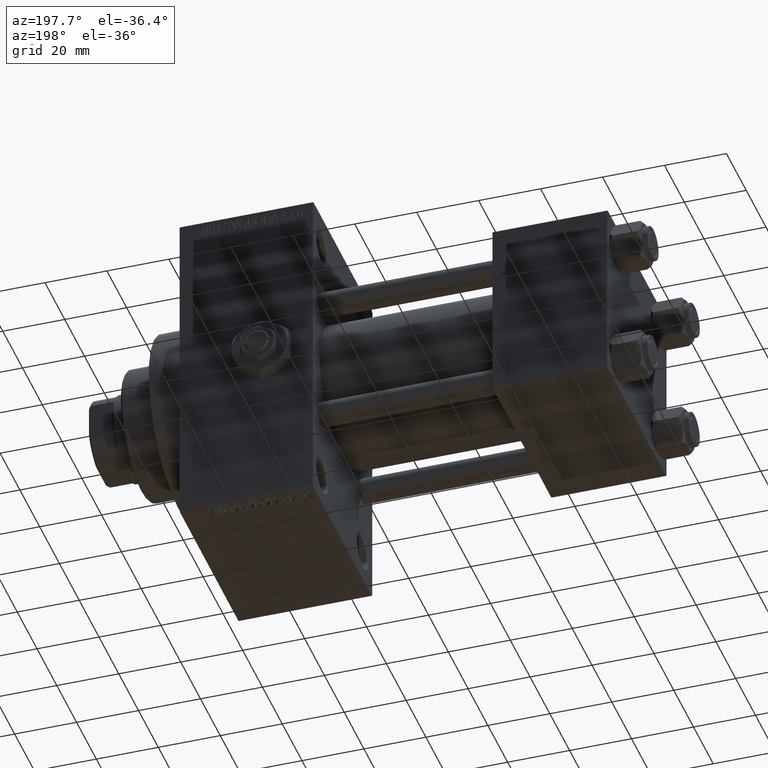
[diagram: clean part render]
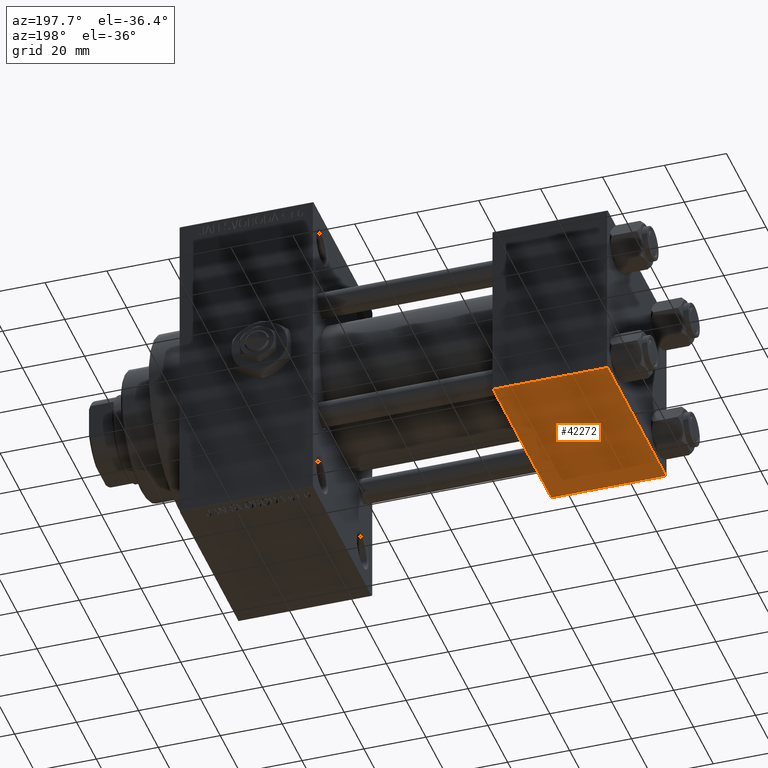
[diagram: same view with one face highlighted and labeled with its STEP entity id]
A machine part, auxiliary view. The second image highlights one B-rep face of the part: STEP entity #42272.
In plain terms, the highlighted planar face has unit normal (0, 0, -1).
Its self-contained STEP definition (entity closure, byte-faithful):
#110 = AXIS2_PLACEMENT_3D ( 'NONE', #21045, #35890, #31685 ) ;
#2740 = CARTESIAN_POINT ( 'NONE',  ( 0.000000000000000000, 29.49999999999997868, -30.00000000000000000 ) ) ;
#4115 = EDGE_CURVE ( 'NONE', #46734, #38453, #42593, .T. ) ;
#4704 = VECTOR ( 'NONE', #22862, 1000.000000000000000 ) ;
#5450 = PLANE ( 'NONE',  #110 ) ;
#7881 = CARTESIAN_POINT ( 'NONE',  ( 37.00000000000000000, 29.49999999999997868, -30.00000000000000000 ) ) ;
#9167 = FACE_OUTER_BOUND ( 'NONE', #24024, .T. ) ;
#10016 = EDGE_CURVE ( 'NONE', #32651, #38453, #45267, .T. ) ;
#10870 = DIRECTION ( 'NONE',  ( 1.000000000000000000, 0.000000000000000000, 0.000000000000000000 ) ) ;
#11114 = LINE ( 'NONE', #7881, #44427 ) ;
#11351 = CARTESIAN_POINT ( 'NONE',  ( 0.000000000000000000, 29.99999999999999289, -30.00000000000000000 ) ) ;
#12011 = ORIENTED_EDGE ( 'NONE', *, *, #10016, .F. ) ;
#15193 = LINE ( 'NONE', #45393, #4704 ) ;
#16171 = ORIENTED_EDGE ( 'NONE', *, *, #26199, .T. ) ;
#17483 = EDGE_CURVE ( 'NONE', #39738, #46734, #15193, .T. ) ;
#21045 = CARTESIAN_POINT ( 'NONE',  ( 37.00000000000000000, 29.99999999999999289, -30.00000000000000000 ) ) ;
#22747 = DIRECTION ( 'NONE',  ( 0.000000000000000000, -1.000000000000000000, -1.156482317317871725E-16 ) ) ;
#22862 = DIRECTION ( 'NONE',  ( 0.000000000000000000, -1.000000000000000000, -1.156482317317871725E-16 ) ) ;
#24024 = EDGE_LOOP ( 'NONE', ( #12011, #16171, #33006, #35717 ) ) ;
#24522 = CARTESIAN_POINT ( 'NONE',  ( 0.000000000000000000, -29.50000000000001066, -30.00000000000000711 ) ) ;
#26199 = EDGE_CURVE ( 'NONE', #32651, #39738, #11114, .T. ) ;
#27390 = CARTESIAN_POINT ( 'NONE',  ( 37.00000000000000000, 29.49999999999997868, -30.00000000000000000 ) ) ;
#31685 = DIRECTION ( 'NONE',  ( 0.000000000000000000, 1.000000000000000000, 1.156482317317871725E-16 ) ) ;
#32223 = CARTESIAN_POINT ( 'NONE',  ( 0.000000000000000000, -29.50000000000000000, -30.00000000000000711 ) ) ;
#32651 = VERTEX_POINT ( 'NONE', #2740 ) ;
#33006 = ORIENTED_EDGE ( 'NONE', *, *, #17483, .T. ) ;
#34928 = DIRECTION ( 'NONE',  ( -1.000000000000000000, 0.000000000000000000, 0.000000000000000000 ) ) ;
#35717 = ORIENTED_EDGE ( 'NONE', *, *, #4115, .T. ) ;
#35890 = DIRECTION ( 'NONE',  ( 0.000000000000000000, 1.156482317317871725E-16, -1.000000000000000000 ) ) ;
#38453 = VERTEX_POINT ( 'NONE', #32223 ) ;
#39020 = VECTOR ( 'NONE', #34928, 1000.000000000000000 ) ;
#39738 = VERTEX_POINT ( 'NONE', #27390 ) ;
#40055 = VECTOR ( 'NONE', #22747, 1000.000000000000000 ) ;
#42272 = ADVANCED_FACE ( 'NONE', ( #9167 ), #5450, .T. ) ;
#42593 = LINE ( 'NONE', #24522, #39020 ) ;
#44427 = VECTOR ( 'NONE', #10870, 1000.000000000000000 ) ;
#45267 = LINE ( 'NONE', #11351, #40055 ) ;
#45393 = CARTESIAN_POINT ( 'NONE',  ( 37.00000000000000000, 29.99999999999999289, -30.00000000000000000 ) ) ;
#46515 = CARTESIAN_POINT ( 'NONE',  ( 37.00000000000000000, -29.50000000000000000, -30.00000000000000711 ) ) ;
#46734 = VERTEX_POINT ( 'NONE', #46515 ) ;